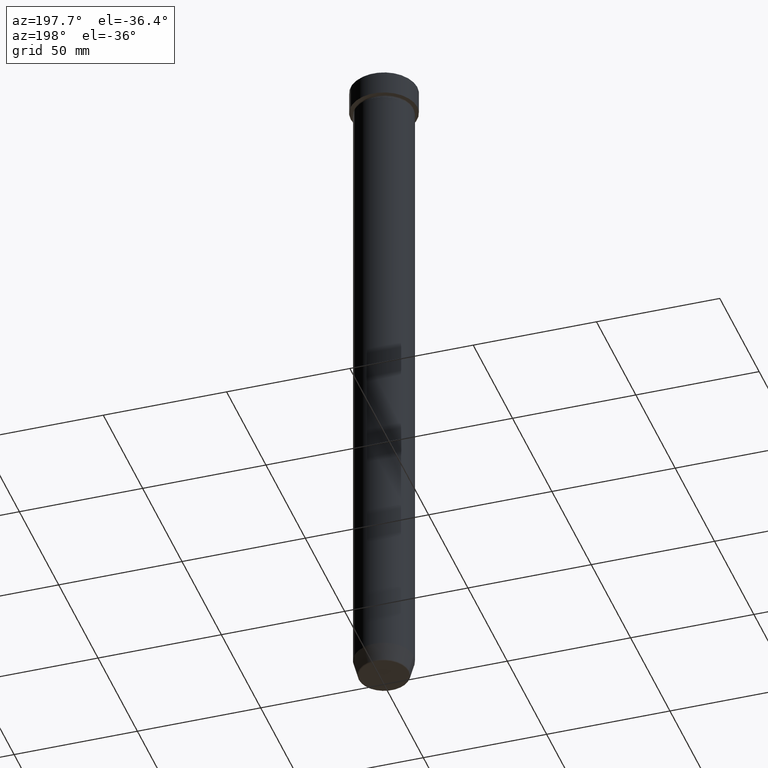
[diagram: clean part render]
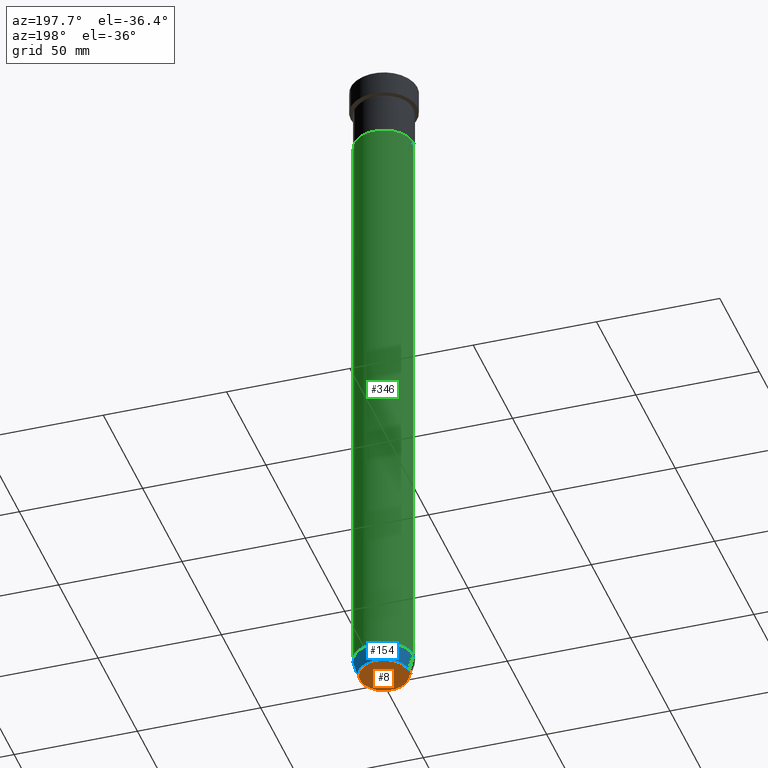
[diagram: same view with three faces highlighted in distinct colors, each labeled with its STEP entity id]
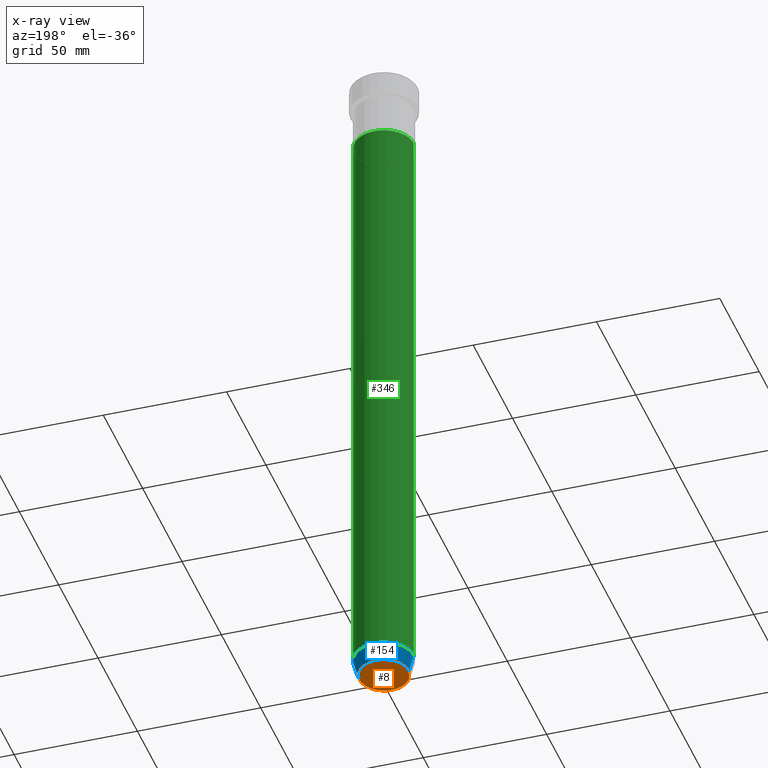
[diagram: x-ray of the same camera — body ghosted, the three highlighted faces saturated]
A machine part, auxiliary view with three faces highlighted in distinct colors.
The next image is the same camera in x-ray (body ghosted, the three faces saturated) — at least one of them is partly hidden behind the body in this view.
Their STEP definitions:

[orange] entity #8 — the highlighted planar face has unit normal (0, -0, 1).
#8 = ADVANCED_FACE ( 'NONE', ( #339 ), #281, .F. ) ;
#51 = CARTESIAN_POINT ( 'NONE',  ( 0.000000000000000000, 2.816687638038912825E-14, -280.0000000000000000 ) ) ;
#76 = DIRECTION ( 'NONE',  ( 1.000000000000000000, 0.000000000000000000, 0.000000000000000000 ) ) ;
#86 = ORIENTED_EDGE ( 'NONE', *, *, #576, .T. ) ;
#139 = EDGE_CURVE ( 'NONE', #519, #362, #151, .T. ) ;
#151 = CIRCLE ( 'NONE', #301, 9.740692158992656502 ) ;
#202 = DIRECTION ( 'NONE',  ( 0.000000000000000000, 0.000000000000000000, -1.000000000000000000 ) ) ;
#229 = DIRECTION ( 'NONE',  ( 1.000000000000000000, 0.000000000000000000, 0.000000000000000000 ) ) ;
#243 = ORIENTED_EDGE ( 'NONE', *, *, #139, .T. ) ;
#281 = PLANE ( 'NONE',  #403 ) ;
#301 = AXIS2_PLACEMENT_3D ( 'NONE', #578, #380, #568 ) ;
#339 = FACE_OUTER_BOUND ( 'NONE', #548, .T. ) ;
#362 = VERTEX_POINT ( 'NONE', #400 ) ;
#380 = DIRECTION ( 'NONE',  ( 0.000000000000000000, 0.000000000000000000, -1.000000000000000000 ) ) ;
#393 = CIRCLE ( 'NONE', #414, 9.740692158992656502 ) ;
#400 = CARTESIAN_POINT ( 'NONE',  ( -9.740692158992656502, 1.222463696683474604E-15, -280.0000000000000000 ) ) ;
#403 = AXIS2_PLACEMENT_3D ( 'NONE', #51, #459, #229 ) ;
#414 = AXIS2_PLACEMENT_3D ( 'NONE', #487, #202, #76 ) ;
#459 = DIRECTION ( 'NONE',  ( 0.000000000000000000, -0.000000000000000000, 1.000000000000000000 ) ) ;
#474 = CARTESIAN_POINT ( 'NONE',  ( 9.740692158992656502, 0.000000000000000000, -280.0000000000000000 ) ) ;
#487 = CARTESIAN_POINT ( 'NONE',  ( 0.000000000000000000, 0.000000000000000000, -280.0000000000000000 ) ) ;
#519 = VERTEX_POINT ( 'NONE', #474 ) ;
#548 = EDGE_LOOP ( 'NONE', ( #243, #86 ) ) ;
#568 = DIRECTION ( 'NONE',  ( 1.000000000000000000, 0.000000000000000000, 0.000000000000000000 ) ) ;
#576 = EDGE_CURVE ( 'NONE', #362, #519, #393, .T. ) ;
#578 = CARTESIAN_POINT ( 'NONE',  ( 0.000000000000000000, 0.000000000000000000, -280.0000000000000000 ) ) ;

[blue] entity #154 — the highlighted conical surface has half-angle 15 deg.
#24 = CARTESIAN_POINT ( 'NONE',  ( -12.00000000000000000, 1.469576158976823947E-15, -273.0000000000000000 ) ) ;
#25 = AXIS2_PLACEMENT_3D ( 'NONE', #390, #577, #491 ) ;
#60 = EDGE_CURVE ( 'NONE', #215, #587, #575, .T. ) ;
#64 = VECTOR ( 'NONE', #438, 1000.000000000000114 ) ;
#81 = CIRCLE ( 'NONE', #25, 10.22365507213718416 ) ;
#91 = AXIS2_PLACEMENT_3D ( 'NONE', #524, #112, #338 ) ;
#100 = DIRECTION ( 'NONE',  ( 1.000000000000000000, 0.000000000000000000, 0.000000000000000000 ) ) ;
#112 = DIRECTION ( 'NONE',  ( -0.000000000000000000, -0.000000000000000000, 1.000000000000000000 ) ) ;
#119 = CARTESIAN_POINT ( 'NONE',  ( 10.12435565298213369, 0.000000000000000000, -280.0000000000000000 ) ) ;
#124 = EDGE_CURVE ( 'NONE', #369, #419, #434, .T. ) ;
#140 = VECTOR ( 'NONE', #431, 1000.000000000000114 ) ;
#154 = ADVANCED_FACE ( 'NONE', ( #160 ), #204, .T. ) ;
#160 = FACE_OUTER_BOUND ( 'NONE', #374, .T. ) ;
#170 = CARTESIAN_POINT ( 'NONE',  ( 10.22365507213718416, 0.000000000000000000, -279.6294095225512706 ) ) ;
#201 = CARTESIAN_POINT ( 'NONE',  ( -10.12435565298213369, 1.239875974385398152E-15, -280.0000000000000000 ) ) ;
#204 = CONICAL_SURFACE ( 'NONE', #356, 10.12435565298213369, 0.2617993877991502405 ) ;
#215 = VERTEX_POINT ( 'NONE', #420 ) ;
#238 = EDGE_CURVE ( 'NONE', #419, #587, #441, .T. ) ;
#294 = ORIENTED_EDGE ( 'NONE', *, *, #337, .T. ) ;
#337 = EDGE_CURVE ( 'NONE', #369, #215, #81, .T. ) ;
#338 = DIRECTION ( 'NONE',  ( 1.000000000000000000, 0.000000000000000000, 0.000000000000000000 ) ) ;
#342 = CARTESIAN_POINT ( 'NONE',  ( 0.000000000000000000, 0.000000000000000000, -280.0000000000000000 ) ) ;
#356 = AXIS2_PLACEMENT_3D ( 'NONE', #342, #475, #100 ) ;
#369 = VERTEX_POINT ( 'NONE', #170 ) ;
#374 = EDGE_LOOP ( 'NONE', ( #294, #559, #594, #398 ) ) ;
#390 = CARTESIAN_POINT ( 'NONE',  ( 0.000000000000000000, 0.000000000000000000, -279.6294095225512706 ) ) ;
#398 = ORIENTED_EDGE ( 'NONE', *, *, #124, .F. ) ;
#419 = VERTEX_POINT ( 'NONE', #497 ) ;
#420 = CARTESIAN_POINT ( 'NONE',  ( -10.22365507213718416, 1.360806402472382153E-15, -279.6294095225512706 ) ) ;
#431 = DIRECTION ( 'NONE',  ( 0.2588190451025214611, 0.000000000000000000, 0.9659258262890679791 ) ) ;
#434 = LINE ( 'NONE', #119, #140 ) ;
#438 = DIRECTION ( 'NONE',  ( -0.2588190451025214611, 3.169619151431774186E-17, 0.9659258262890679791 ) ) ;
#441 = CIRCLE ( 'NONE', #91, 12.00000000000000000 ) ;
#475 = DIRECTION ( 'NONE',  ( -0.000000000000000000, -0.000000000000000000, 1.000000000000000000 ) ) ;
#491 = DIRECTION ( 'NONE',  ( -1.000000000000000000, 0.000000000000000000, 0.000000000000000000 ) ) ;
#497 = CARTESIAN_POINT ( 'NONE',  ( 12.00000000000000000, 0.000000000000000000, -273.0000000000000000 ) ) ;
#524 = CARTESIAN_POINT ( 'NONE',  ( 0.000000000000000000, 0.000000000000000000, -273.0000000000000000 ) ) ;
#559 = ORIENTED_EDGE ( 'NONE', *, *, #60, .T. ) ;
#575 = LINE ( 'NONE', #201, #64 ) ;
#577 = DIRECTION ( 'NONE',  ( -0.000000000000000000, -0.000000000000000000, 1.000000000000000000 ) ) ;
#587 = VERTEX_POINT ( 'NONE', #24 ) ;
#594 = ORIENTED_EDGE ( 'NONE', *, *, #238, .F. ) ;

[green] entity #346 — the highlighted cylindrical surface (edge-blend (fillet) strip) has radius 12 mm, axis along (-0, -0, 1).
#13 = VERTEX_POINT ( 'NONE', #552 ) ;
#24 = CARTESIAN_POINT ( 'NONE',  ( -12.00000000000000000, 1.469576158976823947E-15, -273.0000000000000000 ) ) ;
#46 = CYLINDRICAL_SURFACE ( 'NONE', #492, 12.00000000000000000 ) ;
#58 = CARTESIAN_POINT ( 'NONE',  ( 0.000000000000000000, 0.000000000000000000, -27.00000000000000000 ) ) ;
#90 = CARTESIAN_POINT ( 'NONE',  ( -12.00000000000000000, 1.469576158976823947E-15, 0.000000000000000000 ) ) ;
#91 = AXIS2_PLACEMENT_3D ( 'NONE', #524, #112, #338 ) ;
#92 = VECTOR ( 'NONE', #179, 1000.000000000000000 ) ;
#94 = CARTESIAN_POINT ( 'NONE',  ( 12.00000000000000000, 0.000000000000000000, 0.000000000000000000 ) ) ;
#99 = DIRECTION ( 'NONE',  ( -0.000000000000000000, -0.000000000000000000, 1.000000000000000000 ) ) ;
#112 = DIRECTION ( 'NONE',  ( -0.000000000000000000, -0.000000000000000000, 1.000000000000000000 ) ) ;
#134 = LINE ( 'NONE', #94, #92 ) ;
#138 = FACE_OUTER_BOUND ( 'NONE', #143, .T. ) ;
#143 = EDGE_LOOP ( 'NONE', ( #364, #190, #194, #498 ) ) ;
#176 = VERTEX_POINT ( 'NONE', #513 ) ;
#179 = DIRECTION ( 'NONE',  ( -0.000000000000000000, -0.000000000000000000, 1.000000000000000000 ) ) ;
#190 = ORIENTED_EDGE ( 'NONE', *, *, #411, .T. ) ;
#194 = ORIENTED_EDGE ( 'NONE', *, *, #468, .F. ) ;
#217 = DIRECTION ( 'NONE',  ( -0.000000000000000000, -0.000000000000000000, 1.000000000000000000 ) ) ;
#238 = EDGE_CURVE ( 'NONE', #419, #587, #441, .T. ) ;
#246 = VECTOR ( 'NONE', #217, 1000.000000000000000 ) ;
#286 = DIRECTION ( 'NONE',  ( 1.000000000000000000, 0.000000000000000000, 0.000000000000000000 ) ) ;
#316 = LINE ( 'NONE', #90, #246 ) ;
#338 = DIRECTION ( 'NONE',  ( 1.000000000000000000, 0.000000000000000000, 0.000000000000000000 ) ) ;
#346 = ADVANCED_FACE ( 'NONE', ( #138 ), #46, .T. ) ;
#353 = CARTESIAN_POINT ( 'NONE',  ( 0.000000000000000000, 0.000000000000000000, 0.000000000000000000 ) ) ;
#364 = ORIENTED_EDGE ( 'NONE', *, *, #238, .T. ) ;
#401 = EDGE_CURVE ( 'NONE', #419, #176, #134, .T. ) ;
#407 = CIRCLE ( 'NONE', #443, 12.00000000000000000 ) ;
#411 = EDGE_CURVE ( 'NONE', #587, #13, #316, .T. ) ;
#419 = VERTEX_POINT ( 'NONE', #497 ) ;
#441 = CIRCLE ( 'NONE', #91, 12.00000000000000000 ) ;
#443 = AXIS2_PLACEMENT_3D ( 'NONE', #58, #99, #286 ) ;
#468 = EDGE_CURVE ( 'NONE', #176, #13, #407, .T. ) ;
#492 = AXIS2_PLACEMENT_3D ( 'NONE', #353, #540, #591 ) ;
#497 = CARTESIAN_POINT ( 'NONE',  ( 12.00000000000000000, 0.000000000000000000, -273.0000000000000000 ) ) ;
#498 = ORIENTED_EDGE ( 'NONE', *, *, #401, .F. ) ;
#513 = CARTESIAN_POINT ( 'NONE',  ( 12.00000000000000000, 0.000000000000000000, -27.00000000000000000 ) ) ;
#524 = CARTESIAN_POINT ( 'NONE',  ( 0.000000000000000000, 0.000000000000000000, -273.0000000000000000 ) ) ;
#540 = DIRECTION ( 'NONE',  ( -0.000000000000000000, -0.000000000000000000, 1.000000000000000000 ) ) ;
#552 = CARTESIAN_POINT ( 'NONE',  ( -12.00000000000000000, 1.469576158976823947E-15, -27.00000000000000000 ) ) ;
#587 = VERTEX_POINT ( 'NONE', #24 ) ;
#591 = DIRECTION ( 'NONE',  ( 1.000000000000000000, 0.000000000000000000, 0.000000000000000000 ) ) ;